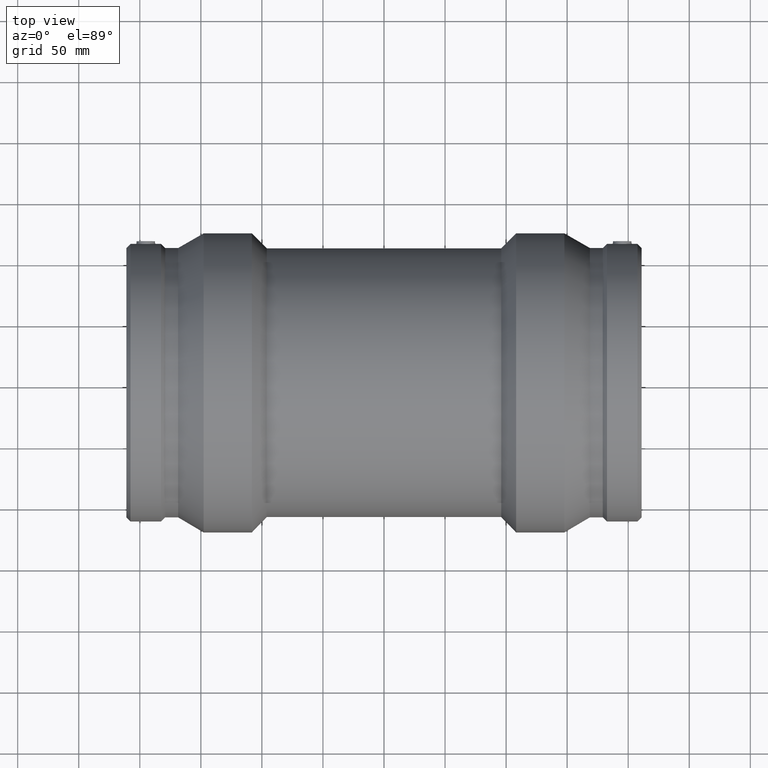
[diagram: clean part render]
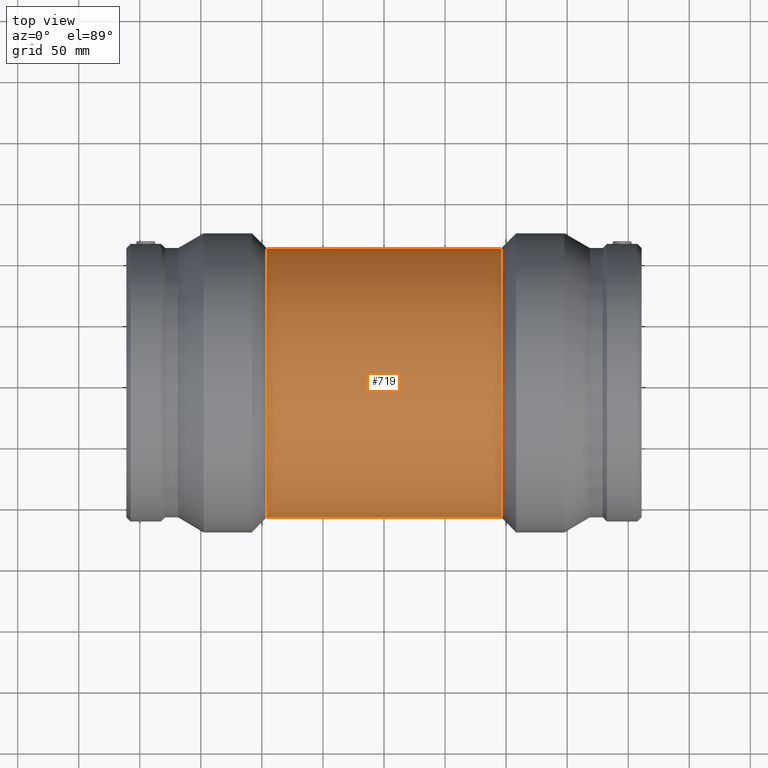
[diagram: same view with one face highlighted and labeled with its STEP entity id]
A machine part, top view. The second image highlights one B-rep face of the part: STEP entity #719.
In plain terms, the highlighted cylindrical surface (bore or boss wall) has radius 110.25 mm, axis along (1, 0, 0).
Its self-contained STEP definition (entity closure, byte-faithful):
#79=FACE_BOUND('',#331,.T.);
#80=FACE_BOUND('',#332,.T.);
#147=CIRCLE('',#807,110.25);
#148=CIRCLE('',#808,110.25);
#199=CYLINDRICAL_SURFACE('',#806,110.25);
#235=FACE_OUTER_BOUND('',#330,.T.);
#330=EDGE_LOOP('',(#616));
#331=EDGE_LOOP('',(#617));
#332=EDGE_LOOP('',(#618));
#416=B_SPLINE_CURVE_WITH_KNOTS('',3,(#1451,#1452,#1453,#1454,#1455,#1456,
#1457,#1458,#1459,#1460,#1461,#1462,#1463,#1464,#1465,#1466,#1467,#1468,
#1469,#1470,#1471,#1472,#1473,#1474,#1475,#1476,#1477,#1478,#1479,#1480,
#1481,#1482,#1483,#1484,#1485,#1486,#1487,#1488,#1489,#1490,#1491,#1492,
#1493,#1494,#1495,#1496,#1497,#1498,#1499,#1500,#1501,#1502,#1503,#1504,
#1505,#1506,#1507,#1508,#1509,#1510,#1511,#1512,#1513,#1514,#1515,#1516),
 .UNSPECIFIED.,.T.,.F.,(4,2,2,2,2,2,2,2,2,2,2,2,2,2,2,2,2,2,2,2,2,2,2,2,
2,2,2,2,2,2,2,2,4),(0.,0.957988045874985,1.91597609174997,2.87396413762495,
3.83195218349994,4.78825814738051,5.74456411126107,6.70087007514164,7.65717603902221,
8.61348200290277,9.56978796678334,10.5260939306639,11.4823998945445,12.4403879404195,
13.3983759862944,14.3563640321694,15.3143520780444,16.2723401239194,17.2303281697944,
18.1883162156694,19.1463042615444,20.1026102254249,21.0589161893055,22.0152221531861,
22.9715281170666,23.9278340809472,24.8841400448278,25.8404460087083,26.7967519725889,
27.7547400184639,28.7127280643389,29.6707161102138,30.6287041560888),
 .UNSPECIFIED.);
#439=VERTEX_POINT('',#1450);
#448=VERTEX_POINT('',#1543);
#449=VERTEX_POINT('',#1545);
#509=EDGE_CURVE('',#439,#439,#416,.T.);
#518=EDGE_CURVE('',#448,#448,#147,.T.);
#519=EDGE_CURVE('',#449,#449,#148,.T.);
#616=ORIENTED_EDGE('',*,*,#518,.F.);
#617=ORIENTED_EDGE('',*,*,#519,.T.);
#618=ORIENTED_EDGE('',*,*,#509,.T.);
#719=ADVANCED_FACE('',(#235,#79,#80),#199,.T.);
#806=AXIS2_PLACEMENT_3D('',#1542,#977,#978);
#807=AXIS2_PLACEMENT_3D('',#1544,#979,#980);
#808=AXIS2_PLACEMENT_3D('',#1546,#981,#982);
#977=DIRECTION('center_axis',(1.,0.,0.));
#978=DIRECTION('ref_axis',(0.,1.,0.));
#979=DIRECTION('center_axis',(1.,0.,0.));
#980=DIRECTION('ref_axis',(0.,0.,-1.));
#981=DIRECTION('center_axis',(1.,0.,0.));
#982=DIRECTION('ref_axis',(0.,0.,-1.));
#1450=CARTESIAN_POINT('',(-1.27675647831893E-14,50.,-98.2601775899067));
#1451=CARTESIAN_POINT('Ctrl Pts',(-1.27675647831893E-14,50.,-98.2601775899067));
#1452=CARTESIAN_POINT('Ctrl Pts',(-3.19329348624996,50.,-98.2601775899067));
#1453=CARTESIAN_POINT('Ctrl Pts',(-6.47737929650837,49.6892251249895,-98.4203295420444));
#1454=CARTESIAN_POINT('Ctrl Pts',(-12.9766584197826,48.4002259721245,-99.0605798731871));
#1455=CARTESIAN_POINT('Ctrl Pts',(-16.192036381653,47.4224770578634,-99.5397604599631));
#1456=CARTESIAN_POINT('Ctrl Pts',(-22.3337020314769,44.8584390609487,-100.721275491338));
#1457=CARTESIAN_POINT('Ctrl Pts',(-25.2657569135132,43.27011517505,-101.423101247537));
#1458=CARTESIAN_POINT('Ctrl Pts',(-30.6785530377453,39.6167606502428,-102.905104871742));
#1459=CARTESIAN_POINT('Ctrl Pts',(-33.1593908862434,37.5512872324113,-103.683837998501));
#1460=CARTESIAN_POINT('Ctrl Pts',(-37.5474314798281,33.1632466388266,-105.169471086954));
#1461=CARTESIAN_POINT('Ctrl Pts',(-39.6123837864811,30.6842900715629,-105.930959057999));
#1462=CARTESIAN_POINT('Ctrl Pts',(-43.2673332573559,25.2706248397611,-107.351242490247));
#1463=CARTESIAN_POINT('Ctrl Pts',(-44.8576157721518,22.3358063652029,-108.008884820759));
#1464=CARTESIAN_POINT('Ctrl Pts',(-47.4239176856329,16.1884532990635,-109.099685754703));
#1465=CARTESIAN_POINT('Ctrl Pts',(-48.4019811070291,12.9702229190122,-109.533018453046));
#1466=CARTESIAN_POINT('Ctrl Pts',(-49.6902294254922,6.46989623812058,-110.108352347531));
#1467=CARTESIAN_POINT('Ctrl Pts',(-50.,3.18768654626856,-110.25));
#1468=CARTESIAN_POINT('Ctrl Pts',(-50.,-3.18768654626856,-110.25));
#1469=CARTESIAN_POINT('Ctrl Pts',(-49.6902294254922,-6.46989623812058,-110.108352347531));
#1470=CARTESIAN_POINT('Ctrl Pts',(-48.4019811070291,-12.9702229190122,-109.533018453046));
#1471=CARTESIAN_POINT('Ctrl Pts',(-47.4239176856329,-16.1884532990635,-109.099685754703));
#1472=CARTESIAN_POINT('Ctrl Pts',(-44.8576157721518,-22.3358063652029,-108.008884820759));
#1473=CARTESIAN_POINT('Ctrl Pts',(-43.2673332573559,-25.2706248397611,-107.351242490247));
#1474=CARTESIAN_POINT('Ctrl Pts',(-39.6123837864811,-30.6842900715629,-105.930959057999));
#1475=CARTESIAN_POINT('Ctrl Pts',(-37.5474314798281,-33.1632466388267,-105.169471086954));
#1476=CARTESIAN_POINT('Ctrl Pts',(-33.1593908862434,-37.5512872324113,-103.683837998501));
#1477=CARTESIAN_POINT('Ctrl Pts',(-30.6785530377453,-39.6167606502428,-102.905104871742));
#1478=CARTESIAN_POINT('Ctrl Pts',(-25.2657569135132,-43.27011517505,-101.423101247537));
#1479=CARTESIAN_POINT('Ctrl Pts',(-22.3337020314769,-44.8584390609487,-100.721275491338));
#1480=CARTESIAN_POINT('Ctrl Pts',(-16.192036381653,-47.4224770578634,-99.5397604599631));
#1481=CARTESIAN_POINT('Ctrl Pts',(-12.9766584197826,-48.4002259721245,-99.0605798731871));
#1482=CARTESIAN_POINT('Ctrl Pts',(-6.47737929650836,-49.6892251249895,-98.4203295420444));
#1483=CARTESIAN_POINT('Ctrl Pts',(-3.19329348624996,-50.,-98.2601775899067));
#1484=CARTESIAN_POINT('Ctrl Pts',(3.19329348624994,-50.,-98.2601775899067));
#1485=CARTESIAN_POINT('Ctrl Pts',(6.47737929650835,-49.6892251249895,-98.4203295420444));
#1486=CARTESIAN_POINT('Ctrl Pts',(12.9766584197826,-48.4002259721245,-99.0605798731871));
#1487=CARTESIAN_POINT('Ctrl Pts',(16.192036381653,-47.4224770578634,-99.5397604599631));
#1488=CARTESIAN_POINT('Ctrl Pts',(22.3337020314769,-44.8584390609487,-100.721275491338));
#1489=CARTESIAN_POINT('Ctrl Pts',(25.2657569135132,-43.27011517505,-101.423101247537));
#1490=CARTESIAN_POINT('Ctrl Pts',(30.6785530377453,-39.6167606502428,-102.905104871742));
#1491=CARTESIAN_POINT('Ctrl Pts',(33.1593908862434,-37.5512872324114,-103.683837998501));
#1492=CARTESIAN_POINT('Ctrl Pts',(37.5474314798281,-33.1632466388267,-105.169471086954));
#1493=CARTESIAN_POINT('Ctrl Pts',(39.6123837864811,-30.6842900715629,-105.930959057999));
#1494=CARTESIAN_POINT('Ctrl Pts',(43.2673332573558,-25.2706248397611,-107.351242490247));
#1495=CARTESIAN_POINT('Ctrl Pts',(44.8576157721518,-22.3358063652029,-108.008884820759));
#1496=CARTESIAN_POINT('Ctrl Pts',(47.4239176856328,-16.1884532990635,-109.099685754703));
#1497=CARTESIAN_POINT('Ctrl Pts',(48.4019811070291,-12.9702229190122,-109.533018453046));
#1498=CARTESIAN_POINT('Ctrl Pts',(49.6902294254921,-6.46989623812058,-110.108352347531));
#1499=CARTESIAN_POINT('Ctrl Pts',(50.,-3.18768654626856,-110.25));
#1500=CARTESIAN_POINT('Ctrl Pts',(50.,3.18768654626855,-110.25));
#1501=CARTESIAN_POINT('Ctrl Pts',(49.6902294254921,6.46989623812057,-110.108352347531));
#1502=CARTESIAN_POINT('Ctrl Pts',(48.4019811070291,12.9702229190122,-109.533018453046));
#1503=CARTESIAN_POINT('Ctrl Pts',(47.4239176856328,16.1884532990635,-109.099685754703));
#1504=CARTESIAN_POINT('Ctrl Pts',(44.8576157721518,22.3358063652029,-108.008884820759));
#1505=CARTESIAN_POINT('Ctrl Pts',(43.2673332573559,25.2706248397611,-107.351242490247));
#1506=CARTESIAN_POINT('Ctrl Pts',(39.6123837864811,30.6842900715629,-105.930959057999));
#1507=CARTESIAN_POINT('Ctrl Pts',(37.5474314798281,33.1632466388267,-105.169471086954));
#1508=CARTESIAN_POINT('Ctrl Pts',(33.1593908862434,37.5512872324113,-103.683837998501));
#1509=CARTESIAN_POINT('Ctrl Pts',(30.6785530377453,39.6167606502428,-102.905104871742));
#1510=CARTESIAN_POINT('Ctrl Pts',(25.2657569135132,43.27011517505,-101.423101247537));
#1511=CARTESIAN_POINT('Ctrl Pts',(22.3337020314769,44.8584390609487,-100.721275491338));
#1512=CARTESIAN_POINT('Ctrl Pts',(16.192036381653,47.4224770578634,-99.5397604599631));
#1513=CARTESIAN_POINT('Ctrl Pts',(12.9766584197826,48.4002259721245,-99.0605798731871));
#1514=CARTESIAN_POINT('Ctrl Pts',(6.47737929650837,49.6892251249895,-98.4203295420444));
#1515=CARTESIAN_POINT('Ctrl Pts',(3.19329348624995,50.,-98.2601775899067));
#1516=CARTESIAN_POINT('Ctrl Pts',(-1.22124532708767E-14,50.,-98.2601775899067));
#1542=CARTESIAN_POINT('Origin',(0.,0.,0.));
#1543=CARTESIAN_POINT('',(96.005,110.25,0.));
#1544=CARTESIAN_POINT('Origin',(96.005,0.,0.));
#1545=CARTESIAN_POINT('',(-96.005,110.25,0.));
#1546=CARTESIAN_POINT('Origin',(-96.005,0.,0.));